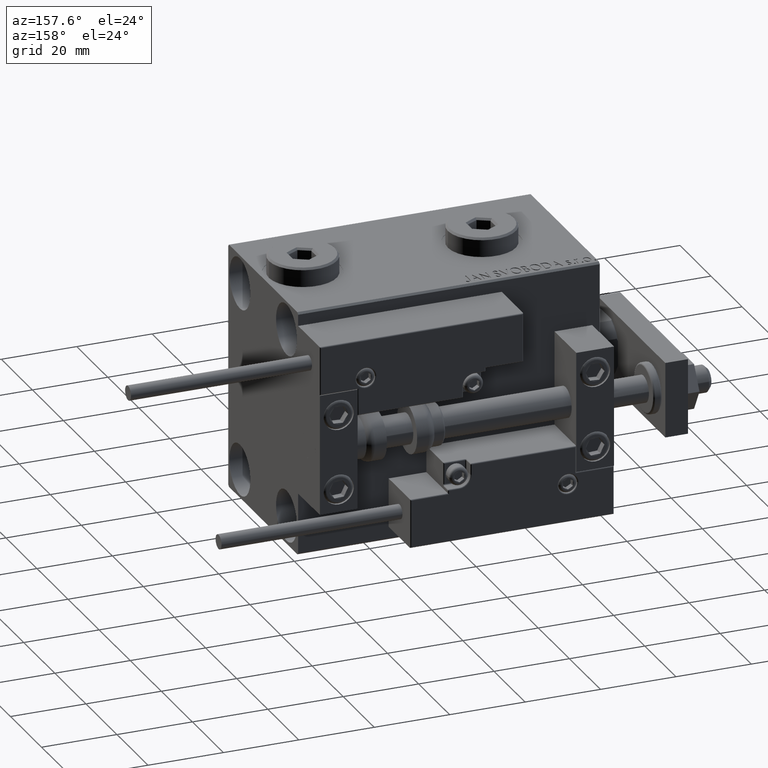
[diagram: clean part render]
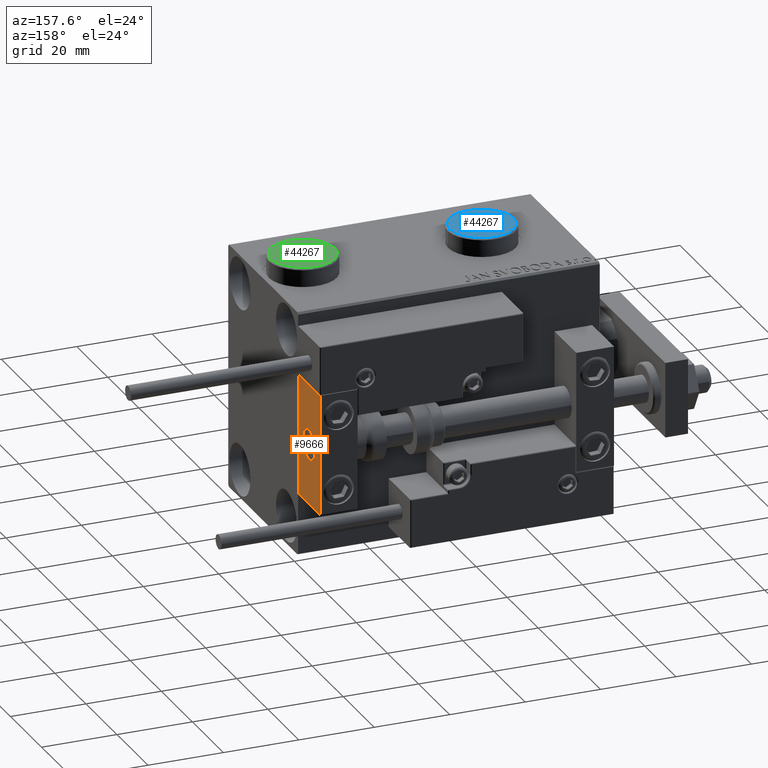
[diagram: same view with three faces highlighted in distinct colors, each labeled with its STEP entity id]
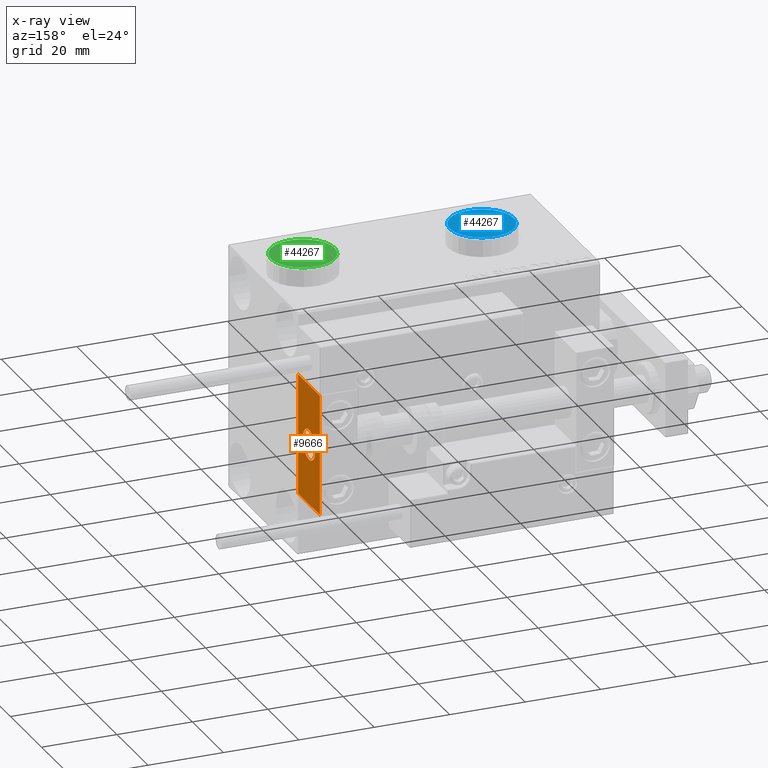
[diagram: x-ray of the same camera — body ghosted, the three highlighted faces saturated]
A machine part, auxiliary view with three faces highlighted in distinct colors.
The next image is the same camera in x-ray (body ghosted, the three faces saturated) — at least one of them is partly hidden behind the body in this view.
Their STEP definitions:

[orange] entity #9666 — the highlighted planar face has unit normal (-1, 0, 0).
#363 = VECTOR ( 'NONE', #45700, 1000.000000000000000 ) ;
#2174 = DIRECTION ( 'NONE',  ( -1.000000000000000000, 0.000000000000000000, -0.000000000000000000 ) ) ;
#2454 = DIRECTION ( 'NONE',  ( 0.000000000000000000, -1.000000000000000000, 0.000000000000000000 ) ) ;
#5167 = DIRECTION ( 'NONE',  ( -1.000000000000000000, 0.000000000000000000, 0.000000000000000000 ) ) ;
#5921 = ORIENTED_EDGE ( 'NONE', *, *, #38346, .F. ) ;
#5936 = DIRECTION ( 'NONE',  ( 0.000000000000000000, 0.000000000000000000, 1.000000000000000000 ) ) ;
#7226 = ORIENTED_EDGE ( 'NONE', *, *, #32381, .F. ) ;
#7893 = AXIS2_PLACEMENT_3D ( 'NONE', #21481, #2174, #42307 ) ;
#8045 = CARTESIAN_POINT ( 'NONE',  ( 10.00000000000000000, 7.000000000000000000, -16.00000000000000711 ) ) ;
#8724 = EDGE_CURVE ( 'NONE', #20649, #27933, #13143, .T. ) ;
#9382 = EDGE_LOOP ( 'NONE', ( #14153, #42674 ) ) ;
#9666 = ADVANCED_FACE ( 'NONE', ( #14176, #45443 ), #37379, .F. ) ;
#11830 = DIRECTION ( 'NONE',  ( 0.000000000000000000, 0.000000000000000000, 1.000000000000000000 ) ) ;
#13143 = LINE ( 'NONE', #29541, #363 ) ;
#13758 = VERTEX_POINT ( 'NONE', #34342 ) ;
#14153 = ORIENTED_EDGE ( 'NONE', *, *, #45934, .T. ) ;
#14176 = FACE_BOUND ( 'NONE', #9382, .T. ) ;
#14957 = CARTESIAN_POINT ( 'NONE',  ( 10.00000000000000000, 7.000000000000000000, 15.99999999999999289 ) ) ;
#15489 = VERTEX_POINT ( 'NONE', #37943 ) ;
#15797 = VERTEX_POINT ( 'NONE', #48059 ) ;
#16750 = LINE ( 'NONE', #29007, #44755 ) ;
#16753 = VECTOR ( 'NONE', #30841, 1000.000000000000000 ) ;
#16804 = VECTOR ( 'NONE', #2454, 1000.000000000000000 ) ;
#17770 = AXIS2_PLACEMENT_3D ( 'NONE', #25759, #5167, #5936 ) ;
#19879 = LINE ( 'NONE', #14957, #16753 ) ;
#20649 = VERTEX_POINT ( 'NONE', #28910 ) ;
#20845 = EDGE_CURVE ( 'NONE', #15797, #20649, #16750, .T. ) ;
#21481 = CARTESIAN_POINT ( 'NONE',  ( 10.00000000000000000, 0.000000000000000000, 0.000000000000000000 ) ) ;
#22791 = LINE ( 'NONE', #41805, #16804 ) ;
#23559 = DIRECTION ( 'NONE',  ( -1.000000000000000000, 0.000000000000000000, 0.000000000000000000 ) ) ;
#24074 = CARTESIAN_POINT ( 'NONE',  ( 10.00000000000000000, 0.000000000000000000, 0.000000000000000000 ) ) ;
#25397 = CIRCLE ( 'NONE', #44529, 4.000000000000000000 ) ;
#25759 = CARTESIAN_POINT ( 'NONE',  ( 10.00000000000000000, 0.000000000000000000, 0.000000000000000000 ) ) ;
#25989 = ORIENTED_EDGE ( 'NONE', *, *, #20845, .T. ) ;
#27741 = CIRCLE ( 'NONE', #17770, 4.000000000000000000 ) ;
#27933 = VERTEX_POINT ( 'NONE', #35611 ) ;
#28910 = CARTESIAN_POINT ( 'NONE',  ( 10.00000000000000000, -7.000000000000000000, 15.99999999999999289 ) ) ;
#29007 = CARTESIAN_POINT ( 'NONE',  ( 10.00000000000000000, 7.000000000000000000, 15.99999999999999289 ) ) ;
#29541 = CARTESIAN_POINT ( 'NONE',  ( 10.00000000000000000, -7.000000000000000000, 15.99999999999999289 ) ) ;
#30824 = EDGE_LOOP ( 'NONE', ( #38823, #7226, #5921, #25989 ) ) ;
#30841 = DIRECTION ( 'NONE',  ( 0.000000000000000000, 0.000000000000000000, -1.000000000000000000 ) ) ;
#32381 = EDGE_CURVE ( 'NONE', #36965, #27933, #22791, .T. ) ;
#34342 = CARTESIAN_POINT ( 'NONE',  ( 10.00000000000000000, 4.898587196589412829E-16, -4.000000000000000000 ) ) ;
#35611 = CARTESIAN_POINT ( 'NONE',  ( 10.00000000000000000, -7.000000000000000000, -16.00000000000000711 ) ) ;
#36965 = VERTEX_POINT ( 'NONE', #8045 ) ;
#37379 = PLANE ( 'NONE',  #7893 ) ;
#37943 = CARTESIAN_POINT ( 'NONE',  ( 10.00000000000000000, 0.000000000000000000, 4.000000000000000000 ) ) ;
#38346 = EDGE_CURVE ( 'NONE', #15797, #36965, #19879, .T. ) ;
#38823 = ORIENTED_EDGE ( 'NONE', *, *, #8724, .T. ) ;
#41805 = CARTESIAN_POINT ( 'NONE',  ( 10.00000000000000000, 7.000000000000000000, -16.00000000000000711 ) ) ;
#42307 = DIRECTION ( 'NONE',  ( -0.000000000000000000, 0.000000000000000000, 1.000000000000000000 ) ) ;
#42674 = ORIENTED_EDGE ( 'NONE', *, *, #49449, .T. ) ;
#44529 = AXIS2_PLACEMENT_3D ( 'NONE', #24074, #23559, #11830 ) ;
#44755 = VECTOR ( 'NONE', #49573, 1000.000000000000000 ) ;
#45443 = FACE_OUTER_BOUND ( 'NONE', #30824, .T. ) ;
#45700 = DIRECTION ( 'NONE',  ( 0.000000000000000000, 0.000000000000000000, -1.000000000000000000 ) ) ;
#45934 = EDGE_CURVE ( 'NONE', #15489, #13758, #27741, .T. ) ;
#48059 = CARTESIAN_POINT ( 'NONE',  ( 10.00000000000000000, 7.000000000000000000, 15.99999999999999289 ) ) ;
#49449 = EDGE_CURVE ( 'NONE', #13758, #15489, #25397, .T. ) ;
#49573 = DIRECTION ( 'NONE',  ( 0.000000000000000000, -1.000000000000000000, 0.000000000000000000 ) ) ;

[blue] entity #44267 — the highlighted planar face has unit normal (0, 0, 1).
#941 = VECTOR ( 'NONE', #4383, 1000.000000000000000 ) ;
#1865 = LINE ( 'NONE', #17769, #35520 ) ;
#1887 = CARTESIAN_POINT ( 'NONE',  ( -0.2500000000000027756, 3.897114317029978459, 5.000000000000000000 ) ) ;
#1892 = VERTEX_POINT ( 'NONE', #34356 ) ;
#2325 = ORIENTED_EDGE ( 'NONE', *, *, #17391, .T. ) ;
#2678 = CARTESIAN_POINT ( 'NONE',  ( 3.500000000000006661, 2.020725942163694722, 5.000000000000000000 ) ) ;
#2715 = LINE ( 'NONE', #25663, #43446 ) ;
#3451 = CARTESIAN_POINT ( 'NONE',  ( -3.500000000000006661, -2.020725942163694278, 5.000000000000000000 ) ) ;
#4383 = DIRECTION ( 'NONE',  ( 0.8660254037844387076, -0.4999999999999998890, 0.000000000000000000 ) ) ;
#4491 = EDGE_CURVE ( 'NONE', #25162, #1892, #10606, .T. ) ;
#4598 = CIRCLE ( 'NONE', #16255, 8.500000000000010658 ) ;
#4818 = DIRECTION ( 'NONE',  ( 1.000000000000000000, 0.000000000000000000, -0.000000000000000000 ) ) ;
#5215 = AXIS2_PLACEMENT_3D ( 'NONE', #40528, #8730, #4818 ) ;
#5538 = LINE ( 'NONE', #1887, #28161 ) ;
#6116 = ORIENTED_EDGE ( 'NONE', *, *, #37701, .T. ) ;
#6878 = CARTESIAN_POINT ( 'NONE',  ( 8.500000000000010658, 1.071565949253934716E-15, 5.000000000000000000 ) ) ;
#8730 = DIRECTION ( 'NONE',  ( 0.000000000000000000, 0.000000000000000000, 1.000000000000000000 ) ) ;
#9578 = ORIENTED_EDGE ( 'NONE', *, *, #10871, .T. ) ;
#9955 = DIRECTION ( 'NONE',  ( -0.8660254037844387076, -0.4999999999999998890, 0.000000000000000000 ) ) ;
#10606 = LINE ( 'NONE', #19201, #39755 ) ;
#10871 = EDGE_CURVE ( 'NONE', #13691, #40329, #4598, .T. ) ;
#11597 = CARTESIAN_POINT ( 'NONE',  ( 0.000000000000000000, 0.000000000000000000, 5.000000000000000000 ) ) ;
#11812 = CARTESIAN_POINT ( 'NONE',  ( 0.000000000000000000, 0.000000000000000000, 5.000000000000000000 ) ) ;
#12491 = VERTEX_POINT ( 'NONE', #42967 ) ;
#13676 = DIRECTION ( 'NONE',  ( -0.8660254037844385966, 0.4999999999999999445, 0.000000000000000000 ) ) ;
#13691 = VERTEX_POINT ( 'NONE', #25490 ) ;
#14966 = DIRECTION ( 'NONE',  ( 1.000000000000000000, 0.000000000000000000, 0.000000000000000000 ) ) ;
#15630 = LINE ( 'NONE', #28122, #941 ) ;
#16255 = AXIS2_PLACEMENT_3D ( 'NONE', #11812, #47511, #14966 ) ;
#17348 = PLANE ( 'NONE',  #5215 ) ;
#17391 = EDGE_CURVE ( 'NONE', #1892, #42427, #1865, .T. ) ;
#17769 = CARTESIAN_POINT ( 'NONE',  ( 0.2500000000000027756, -3.897114317029979347, 5.000000000000000000 ) ) ;
#19135 = CARTESIAN_POINT ( 'NONE',  ( -3.500000000000006661, 1.732050807568878081, 5.000000000000000000 ) ) ;
#19170 = VERTEX_POINT ( 'NONE', #27498 ) ;
#19201 = CARTESIAN_POINT ( 'NONE',  ( 3.500000000000006661, -1.732050807568878303, 5.000000000000000000 ) ) ;
#19384 = VERTEX_POINT ( 'NONE', #3451 ) ;
#19421 = DIRECTION ( 'NONE',  ( 1.000000000000000000, 0.000000000000000000, 0.000000000000000000 ) ) ;
#21757 = ORIENTED_EDGE ( 'NONE', *, *, #41348, .T. ) ;
#21875 = EDGE_CURVE ( 'NONE', #12491, #19170, #5538, .T. ) ;
#22230 = ORIENTED_EDGE ( 'NONE', *, *, #21875, .T. ) ;
#23427 = CIRCLE ( 'NONE', #50922, 8.500000000000010658 ) ;
#25162 = VERTEX_POINT ( 'NONE', #2678 ) ;
#25490 = CARTESIAN_POINT ( 'NONE',  ( -8.500000000000010658, 0.000000000000000000, 5.000000000000000000 ) ) ;
#25663 = CARTESIAN_POINT ( 'NONE',  ( -3.250000000000003109, -2.165063509461102598, 5.000000000000000000 ) ) ;
#26981 = EDGE_CURVE ( 'NONE', #19384, #12491, #31370, .T. ) ;
#27243 = DIRECTION ( 'NONE',  ( 0.000000000000000000, 0.000000000000000000, 1.000000000000000000 ) ) ;
#27498 = CARTESIAN_POINT ( 'NONE',  ( 1.590596867181068292E-15, 4.041451884327386779, 5.000000000000000000 ) ) ;
#28122 = CARTESIAN_POINT ( 'NONE',  ( 3.250000000000003109, 2.165063509461103042, 5.000000000000000000 ) ) ;
#28161 = VECTOR ( 'NONE', #33691, 1000.000000000000000 ) ;
#31370 = LINE ( 'NONE', #19135, #46667 ) ;
#31436 = DIRECTION ( 'NONE',  ( 0.000000000000000000, -1.000000000000000000, 0.000000000000000000 ) ) ;
#32396 = EDGE_CURVE ( 'NONE', #42427, #19384, #2715, .T. ) ;
#33691 = DIRECTION ( 'NONE',  ( 0.8660254037844387076, 0.4999999999999998335, 0.000000000000000000 ) ) ;
#34356 = CARTESIAN_POINT ( 'NONE',  ( 3.500000000000006661, -2.020725942163693833, 5.000000000000000000 ) ) ;
#35520 = VECTOR ( 'NONE', #9955, 1000.000000000000000 ) ;
#37701 = EDGE_CURVE ( 'NONE', #40329, #13691, #23427, .T. ) ;
#39755 = VECTOR ( 'NONE', #31436, 1000.000000000000000 ) ;
#40329 = VERTEX_POINT ( 'NONE', #6878 ) ;
#40390 = ORIENTED_EDGE ( 'NONE', *, *, #32396, .T. ) ;
#40528 = CARTESIAN_POINT ( 'NONE',  ( 0.000000000000000000, 0.000000000000000000, 5.000000000000000000 ) ) ;
#41049 = FACE_BOUND ( 'NONE', #44739, .T. ) ;
#41348 = EDGE_CURVE ( 'NONE', #19170, #25162, #15630, .T. ) ;
#41356 = DIRECTION ( 'NONE',  ( 0.000000000000000000, 1.000000000000000000, 0.000000000000000000 ) ) ;
#42427 = VERTEX_POINT ( 'NONE', #49482 ) ;
#42967 = CARTESIAN_POINT ( 'NONE',  ( -3.500000000000006661, 2.020725942163692945, 5.000000000000000000 ) ) ;
#43446 = VECTOR ( 'NONE', #13676, 1000.000000000000114 ) ;
#44267 = ADVANCED_FACE ( 'NONE', ( #41049, #44432 ), #17348, .T. ) ;
#44432 = FACE_OUTER_BOUND ( 'NONE', #48956, .T. ) ;
#44739 = EDGE_LOOP ( 'NONE', ( #47406, #22230, #21757, #47753, #2325, #40390 ) ) ;
#46667 = VECTOR ( 'NONE', #41356, 1000.000000000000000 ) ;
#47406 = ORIENTED_EDGE ( 'NONE', *, *, #26981, .T. ) ;
#47511 = DIRECTION ( 'NONE',  ( 0.000000000000000000, 0.000000000000000000, 1.000000000000000000 ) ) ;
#47753 = ORIENTED_EDGE ( 'NONE', *, *, #4491, .T. ) ;
#48956 = EDGE_LOOP ( 'NONE', ( #9578, #6116 ) ) ;
#49482 = CARTESIAN_POINT ( 'NONE',  ( -1.006139216460143630E-15, -4.041451884327387667, 5.000000000000000000 ) ) ;
#50922 = AXIS2_PLACEMENT_3D ( 'NONE', #11597, #27243, #19421 ) ;

[green] entity #44267 — the highlighted planar face has unit normal (0, 0, 1).
#941 = VECTOR ( 'NONE', #4383, 1000.000000000000000 ) ;
#1865 = LINE ( 'NONE', #17769, #35520 ) ;
#1887 = CARTESIAN_POINT ( 'NONE',  ( -0.2500000000000027756, 3.897114317029978459, 5.000000000000000000 ) ) ;
#1892 = VERTEX_POINT ( 'NONE', #34356 ) ;
#2325 = ORIENTED_EDGE ( 'NONE', *, *, #17391, .T. ) ;
#2678 = CARTESIAN_POINT ( 'NONE',  ( 3.500000000000006661, 2.020725942163694722, 5.000000000000000000 ) ) ;
#2715 = LINE ( 'NONE', #25663, #43446 ) ;
#3451 = CARTESIAN_POINT ( 'NONE',  ( -3.500000000000006661, -2.020725942163694278, 5.000000000000000000 ) ) ;
#4383 = DIRECTION ( 'NONE',  ( 0.8660254037844387076, -0.4999999999999998890, 0.000000000000000000 ) ) ;
#4491 = EDGE_CURVE ( 'NONE', #25162, #1892, #10606, .T. ) ;
#4598 = CIRCLE ( 'NONE', #16255, 8.500000000000010658 ) ;
#4818 = DIRECTION ( 'NONE',  ( 1.000000000000000000, 0.000000000000000000, -0.000000000000000000 ) ) ;
#5215 = AXIS2_PLACEMENT_3D ( 'NONE', #40528, #8730, #4818 ) ;
#5538 = LINE ( 'NONE', #1887, #28161 ) ;
#6116 = ORIENTED_EDGE ( 'NONE', *, *, #37701, .T. ) ;
#6878 = CARTESIAN_POINT ( 'NONE',  ( 8.500000000000010658, 1.071565949253934716E-15, 5.000000000000000000 ) ) ;
#8730 = DIRECTION ( 'NONE',  ( 0.000000000000000000, 0.000000000000000000, 1.000000000000000000 ) ) ;
#9578 = ORIENTED_EDGE ( 'NONE', *, *, #10871, .T. ) ;
#9955 = DIRECTION ( 'NONE',  ( -0.8660254037844387076, -0.4999999999999998890, 0.000000000000000000 ) ) ;
#10606 = LINE ( 'NONE', #19201, #39755 ) ;
#10871 = EDGE_CURVE ( 'NONE', #13691, #40329, #4598, .T. ) ;
#11597 = CARTESIAN_POINT ( 'NONE',  ( 0.000000000000000000, 0.000000000000000000, 5.000000000000000000 ) ) ;
#11812 = CARTESIAN_POINT ( 'NONE',  ( 0.000000000000000000, 0.000000000000000000, 5.000000000000000000 ) ) ;
#12491 = VERTEX_POINT ( 'NONE', #42967 ) ;
#13676 = DIRECTION ( 'NONE',  ( -0.8660254037844385966, 0.4999999999999999445, 0.000000000000000000 ) ) ;
#13691 = VERTEX_POINT ( 'NONE', #25490 ) ;
#14966 = DIRECTION ( 'NONE',  ( 1.000000000000000000, 0.000000000000000000, 0.000000000000000000 ) ) ;
#15630 = LINE ( 'NONE', #28122, #941 ) ;
#16255 = AXIS2_PLACEMENT_3D ( 'NONE', #11812, #47511, #14966 ) ;
#17348 = PLANE ( 'NONE',  #5215 ) ;
#17391 = EDGE_CURVE ( 'NONE', #1892, #42427, #1865, .T. ) ;
#17769 = CARTESIAN_POINT ( 'NONE',  ( 0.2500000000000027756, -3.897114317029979347, 5.000000000000000000 ) ) ;
#19135 = CARTESIAN_POINT ( 'NONE',  ( -3.500000000000006661, 1.732050807568878081, 5.000000000000000000 ) ) ;
#19170 = VERTEX_POINT ( 'NONE', #27498 ) ;
#19201 = CARTESIAN_POINT ( 'NONE',  ( 3.500000000000006661, -1.732050807568878303, 5.000000000000000000 ) ) ;
#19384 = VERTEX_POINT ( 'NONE', #3451 ) ;
#19421 = DIRECTION ( 'NONE',  ( 1.000000000000000000, 0.000000000000000000, 0.000000000000000000 ) ) ;
#21757 = ORIENTED_EDGE ( 'NONE', *, *, #41348, .T. ) ;
#21875 = EDGE_CURVE ( 'NONE', #12491, #19170, #5538, .T. ) ;
#22230 = ORIENTED_EDGE ( 'NONE', *, *, #21875, .T. ) ;
#23427 = CIRCLE ( 'NONE', #50922, 8.500000000000010658 ) ;
#25162 = VERTEX_POINT ( 'NONE', #2678 ) ;
#25490 = CARTESIAN_POINT ( 'NONE',  ( -8.500000000000010658, 0.000000000000000000, 5.000000000000000000 ) ) ;
#25663 = CARTESIAN_POINT ( 'NONE',  ( -3.250000000000003109, -2.165063509461102598, 5.000000000000000000 ) ) ;
#26981 = EDGE_CURVE ( 'NONE', #19384, #12491, #31370, .T. ) ;
#27243 = DIRECTION ( 'NONE',  ( 0.000000000000000000, 0.000000000000000000, 1.000000000000000000 ) ) ;
#27498 = CARTESIAN_POINT ( 'NONE',  ( 1.590596867181068292E-15, 4.041451884327386779, 5.000000000000000000 ) ) ;
#28122 = CARTESIAN_POINT ( 'NONE',  ( 3.250000000000003109, 2.165063509461103042, 5.000000000000000000 ) ) ;
#28161 = VECTOR ( 'NONE', #33691, 1000.000000000000000 ) ;
#31370 = LINE ( 'NONE', #19135, #46667 ) ;
#31436 = DIRECTION ( 'NONE',  ( 0.000000000000000000, -1.000000000000000000, 0.000000000000000000 ) ) ;
#32396 = EDGE_CURVE ( 'NONE', #42427, #19384, #2715, .T. ) ;
#33691 = DIRECTION ( 'NONE',  ( 0.8660254037844387076, 0.4999999999999998335, 0.000000000000000000 ) ) ;
#34356 = CARTESIAN_POINT ( 'NONE',  ( 3.500000000000006661, -2.020725942163693833, 5.000000000000000000 ) ) ;
#35520 = VECTOR ( 'NONE', #9955, 1000.000000000000000 ) ;
#37701 = EDGE_CURVE ( 'NONE', #40329, #13691, #23427, .T. ) ;
#39755 = VECTOR ( 'NONE', #31436, 1000.000000000000000 ) ;
#40329 = VERTEX_POINT ( 'NONE', #6878 ) ;
#40390 = ORIENTED_EDGE ( 'NONE', *, *, #32396, .T. ) ;
#40528 = CARTESIAN_POINT ( 'NONE',  ( 0.000000000000000000, 0.000000000000000000, 5.000000000000000000 ) ) ;
#41049 = FACE_BOUND ( 'NONE', #44739, .T. ) ;
#41348 = EDGE_CURVE ( 'NONE', #19170, #25162, #15630, .T. ) ;
#41356 = DIRECTION ( 'NONE',  ( 0.000000000000000000, 1.000000000000000000, 0.000000000000000000 ) ) ;
#42427 = VERTEX_POINT ( 'NONE', #49482 ) ;
#42967 = CARTESIAN_POINT ( 'NONE',  ( -3.500000000000006661, 2.020725942163692945, 5.000000000000000000 ) ) ;
#43446 = VECTOR ( 'NONE', #13676, 1000.000000000000114 ) ;
#44267 = ADVANCED_FACE ( 'NONE', ( #41049, #44432 ), #17348, .T. ) ;
#44432 = FACE_OUTER_BOUND ( 'NONE', #48956, .T. ) ;
#44739 = EDGE_LOOP ( 'NONE', ( #47406, #22230, #21757, #47753, #2325, #40390 ) ) ;
#46667 = VECTOR ( 'NONE', #41356, 1000.000000000000000 ) ;
#47406 = ORIENTED_EDGE ( 'NONE', *, *, #26981, .T. ) ;
#47511 = DIRECTION ( 'NONE',  ( 0.000000000000000000, 0.000000000000000000, 1.000000000000000000 ) ) ;
#47753 = ORIENTED_EDGE ( 'NONE', *, *, #4491, .T. ) ;
#48956 = EDGE_LOOP ( 'NONE', ( #9578, #6116 ) ) ;
#49482 = CARTESIAN_POINT ( 'NONE',  ( -1.006139216460143630E-15, -4.041451884327387667, 5.000000000000000000 ) ) ;
#50922 = AXIS2_PLACEMENT_3D ( 'NONE', #11597, #27243, #19421 ) ;